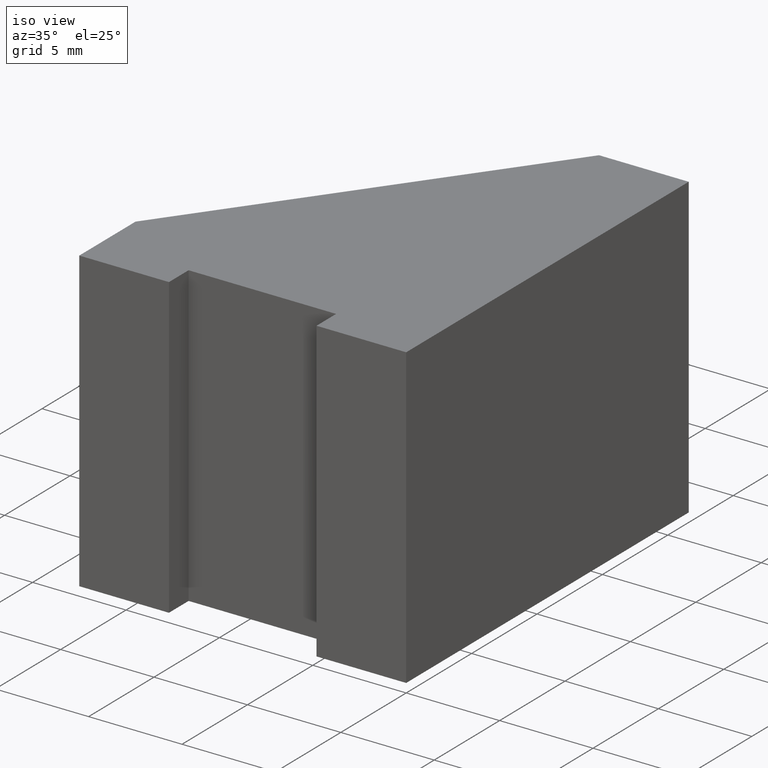
[diagram: clean part render]
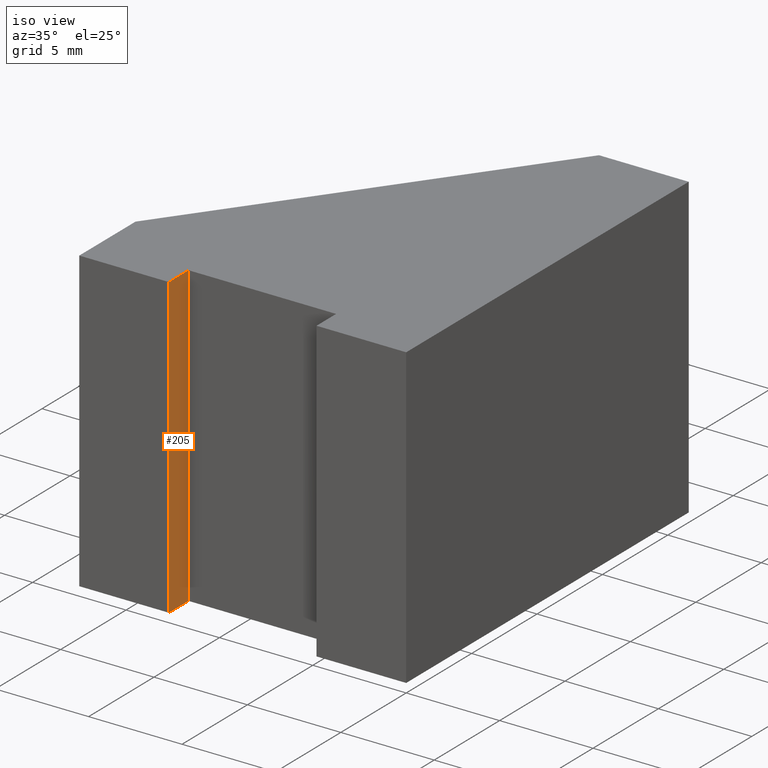
[diagram: same view with one face highlighted and labeled with its STEP entity id]
A machine part, iso view. The second image highlights one B-rep face of the part: STEP entity #205.
In plain terms, the highlighted planar face has unit normal (1, 0, 0).
Its self-contained STEP definition (entity closure, byte-faithful):
#19=FACE_OUTER_BOUND('',#30,.T.);
#30=EDGE_LOOP('',(#154,#155,#156,#157));
#42=LINE('',#310,#69);
#51=LINE('',#327,#78);
#52=LINE('',#330,#79);
#53=LINE('',#331,#80);
#69=VECTOR('',#255,10.);
#78=VECTOR('',#268,10.);
#79=VECTOR('',#271,10.);
#80=VECTOR('',#272,10.);
#96=VERTEX_POINT('',#307);
#97=VERTEX_POINT('',#309);
#103=VERTEX_POINT('',#325);
#104=VERTEX_POINT('',#329);
#114=EDGE_CURVE('',#97,#96,#42,.T.);
#123=EDGE_CURVE('',#103,#96,#51,.T.);
#124=EDGE_CURVE('',#103,#104,#52,.T.);
#125=EDGE_CURVE('',#104,#97,#53,.T.);
#154=ORIENTED_EDGE('',*,*,#124,.T.);
#155=ORIENTED_EDGE('',*,*,#125,.T.);
#156=ORIENTED_EDGE('',*,*,#114,.T.);
#157=ORIENTED_EDGE('',*,*,#123,.F.);
#194=PLANE('',#239);
#205=ADVANCED_FACE('',(#19),#194,.T.);
#239=AXIS2_PLACEMENT_3D('',#328,#269,#270);
#255=DIRECTION('',(0.,1.,0.));
#268=DIRECTION('',(0.,0.,-1.));
#269=DIRECTION('center_axis',(1.,0.,0.));
#270=DIRECTION('ref_axis',(0.,0.,-1.));
#271=DIRECTION('',(0.,-1.,0.));
#272=DIRECTION('',(0.,0.,-1.));
#307=CARTESIAN_POINT('',(-12.7,1.5,-8.));
#309=CARTESIAN_POINT('',(-12.7,1.80411241501588E-15,-8.));
#310=CARTESIAN_POINT('',(-12.7,1.5,-8.));
#325=CARTESIAN_POINT('',(-12.7,1.5,8.));
#327=CARTESIAN_POINT('',(-12.7,1.5,0.));
#328=CARTESIAN_POINT('Origin',(-12.7,1.5,0.));
#329=CARTESIAN_POINT('',(-12.7,1.80411241501588E-15,8.));
#330=CARTESIAN_POINT('',(-12.7,1.5,8.));
#331=CARTESIAN_POINT('',(-12.7,1.80411241501588E-15,0.));